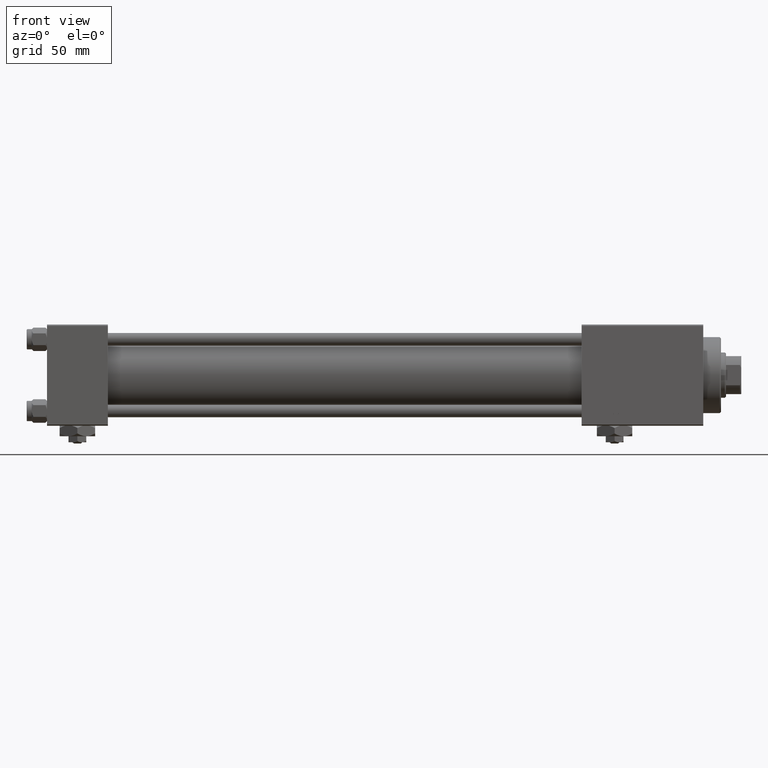
[diagram: clean part render]
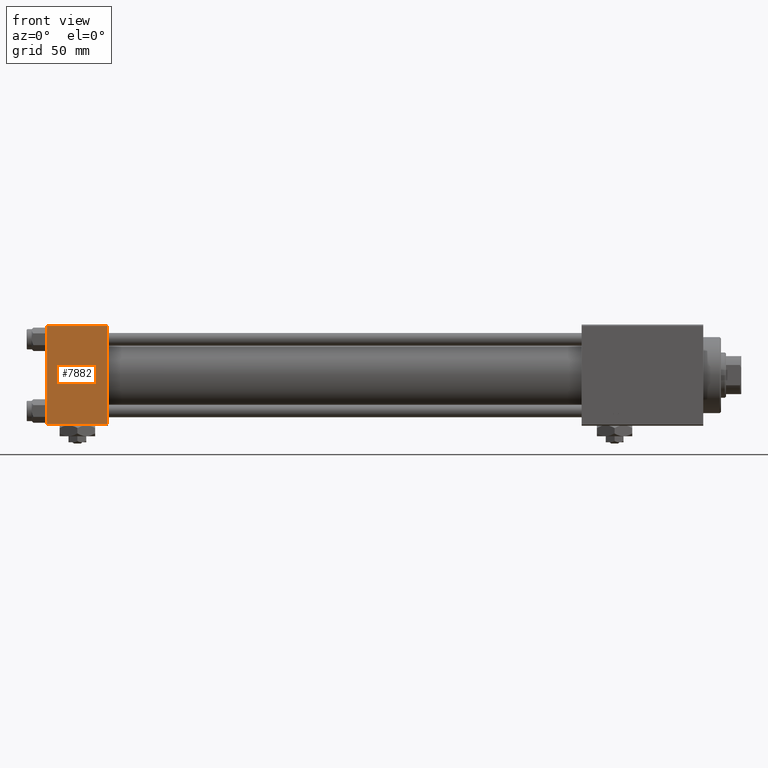
[diagram: same view with one face highlighted and labeled with its STEP entity id]
A machine part, front view. The second image highlights one B-rep face of the part: STEP entity #7882.
In plain terms, the highlighted planar face has unit normal (0, 1, 0).
Its self-contained STEP definition (entity closure, byte-faithful):
#2050 = CARTESIAN_POINT ( 'NONE',  ( 24.00000000000000000, -20.00000000000000355, 19.49999999999998224 ) ) ;
#3010 = ORIENTED_EDGE ( 'NONE', *, *, #23919, .T. ) ;
#3275 = EDGE_CURVE ( 'NONE', #42679, #42154, #3889, .T. ) ;
#3889 = LINE ( 'NONE', #32592, #50548 ) ;
#3951 = ORIENTED_EDGE ( 'NONE', *, *, #47584, .T. ) ;
#4688 = VERTEX_POINT ( 'NONE', #47178 ) ;
#6529 = DIRECTION ( 'NONE',  ( 0.000000000000000000, 8.673617379884036705E-17, -1.000000000000000000 ) ) ;
#7718 = DIRECTION ( 'NONE',  ( 0.000000000000000000, -8.673617379884036705E-17, 1.000000000000000000 ) ) ;
#7882 = ADVANCED_FACE ( 'NONE', ( #11933 ), #51466, .F. ) ;
#10477 = CARTESIAN_POINT ( 'NONE',  ( 24.00000000000000000, -20.00000000000000355, 19.99999999999998934 ) ) ;
#11418 = CARTESIAN_POINT ( 'NONE',  ( 24.00000000000000000, -20.00000000000000355, 19.99999999999998934 ) ) ;
#11933 = FACE_OUTER_BOUND ( 'NONE', #45503, .T. ) ;
#12308 = DIRECTION ( 'NONE',  ( 1.000000000000000000, 0.000000000000000000, 0.000000000000000000 ) ) ;
#14153 = LINE ( 'NONE', #2050, #28492 ) ;
#15375 = DIRECTION ( 'NONE',  ( -0.000000000000000000, 1.000000000000000000, 8.673617379884036705E-17 ) ) ;
#15676 = VERTEX_POINT ( 'NONE', #45862 ) ;
#17851 = DIRECTION ( 'NONE',  ( -1.000000000000000000, 0.000000000000000000, 0.000000000000000000 ) ) ;
#18590 = ORIENTED_EDGE ( 'NONE', *, *, #21882, .F. ) ;
#18730 = AXIS2_PLACEMENT_3D ( 'NONE', #11418, #15375, #7718 ) ;
#19670 = VECTOR ( 'NONE', #35010, 1000.000000000000000 ) ;
#21829 = LINE ( 'NONE', #10477, #29146 ) ;
#21882 = EDGE_CURVE ( 'NONE', #15676, #42154, #21829, .T. ) ;
#23919 = EDGE_CURVE ( 'NONE', #15676, #4688, #14153, .T. ) ;
#28492 = VECTOR ( 'NONE', #17851, 1000.000000000000000 ) ;
#29146 = VECTOR ( 'NONE', #6529, 1000.000000000000000 ) ;
#31652 = CARTESIAN_POINT ( 'NONE',  ( 0.000000000000000000, -20.00000000000000000, -19.49999999999999645 ) ) ;
#32592 = CARTESIAN_POINT ( 'NONE',  ( 24.00000000000000000, -20.00000000000000000, -19.49999999999999645 ) ) ;
#33109 = ORIENTED_EDGE ( 'NONE', *, *, #3275, .T. ) ;
#34226 = CARTESIAN_POINT ( 'NONE',  ( 0.000000000000000000, -20.00000000000000355, 19.99999999999998934 ) ) ;
#35010 = DIRECTION ( 'NONE',  ( 0.000000000000000000, 8.673617379884036705E-17, -1.000000000000000000 ) ) ;
#42154 = VERTEX_POINT ( 'NONE', #45712 ) ;
#42679 = VERTEX_POINT ( 'NONE', #31652 ) ;
#45503 = EDGE_LOOP ( 'NONE', ( #3951, #33109, #18590, #3010 ) ) ;
#45712 = CARTESIAN_POINT ( 'NONE',  ( 24.00000000000000000, -20.00000000000000000, -19.49999999999999645 ) ) ;
#45862 = CARTESIAN_POINT ( 'NONE',  ( 24.00000000000000000, -20.00000000000000355, 19.49999999999998224 ) ) ;
#47178 = CARTESIAN_POINT ( 'NONE',  ( 0.000000000000000000, -20.00000000000000355, 19.49999999999998224 ) ) ;
#47584 = EDGE_CURVE ( 'NONE', #4688, #42679, #50819, .T. ) ;
#50548 = VECTOR ( 'NONE', #12308, 1000.000000000000000 ) ;
#50819 = LINE ( 'NONE', #34226, #19670 ) ;
#51466 = PLANE ( 'NONE',  #18730 ) ;